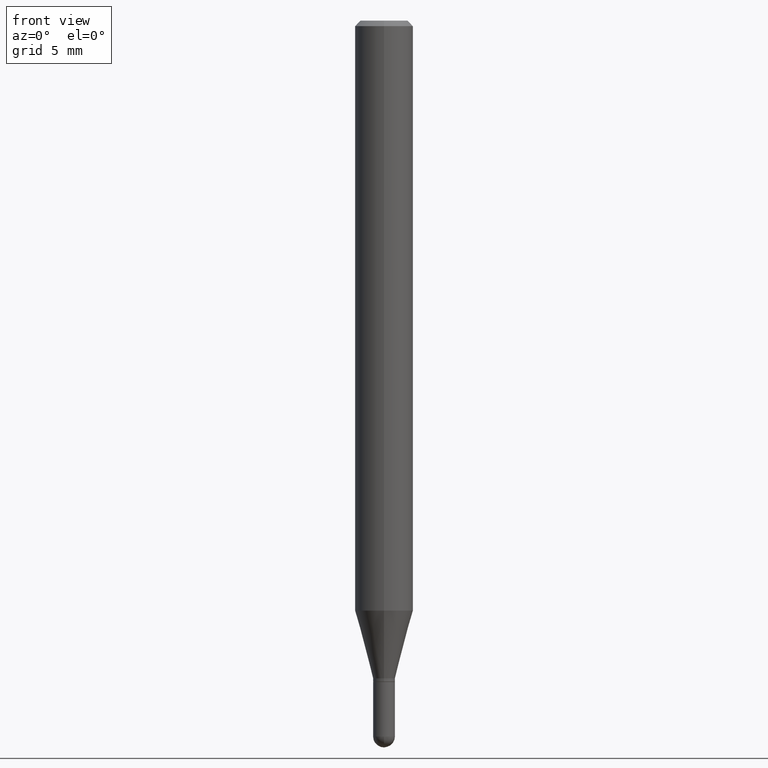
[diagram: clean part render]
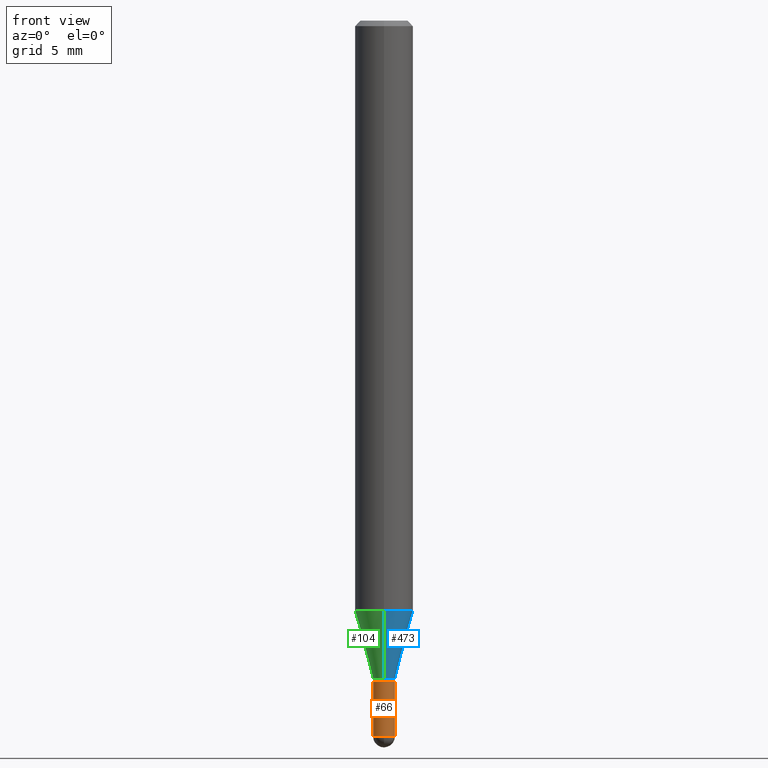
[diagram: same view with three faces highlighted in distinct colors, each labeled with its STEP entity id]
A machine part, front view with three faces highlighted in distinct colors.
Their STEP definitions:

[orange] entity #66 — the highlighted cylindrical surface (edge-blend (fillet) strip) has radius 0.7506 mm, axis along (-0, 0, 1).
#9 = EDGE_CURVE ( 'NONE', #355, #499, #20, .T. ) ;
#10 = CARTESIAN_POINT ( 'NONE',  ( 4.741641741752670047E-29, -6.769807741949916508E-15, -1.938949999999999729 ) ) ;
#20 = LINE ( 'NONE', #90, #238 ) ;
#21 = FACE_OUTER_BOUND ( 'NONE', #254, .T. ) ;
#25 = CARTESIAN_POINT ( 'NONE',  ( -0.02954999999999999988, 2.099653784171096041E-16, -1.453545319170324550E-30 ) ) ;
#27 = CYLINDRICAL_SURFACE ( 'NONE', #356, 0.02954999999999999988 ) ;
#57 = ORIENTED_EDGE ( 'NONE', *, *, #83, .F. ) ;
#58 = CARTESIAN_POINT ( 'NONE',  ( 0.000000000000000000, 0.000000000000000000, 0.000000000000000000 ) ) ;
#63 = EDGE_CURVE ( 'NONE', #312, #105, #154, .T. ) ;
#66 = ADVANCED_FACE ( 'NONE', ( #21 ), #27, .T. ) ;
#79 = CARTESIAN_POINT ( 'NONE',  ( -2.099653784170621245E-16, -0.02955000000000676530, -1.938949999999999729 ) ) ;
#83 = EDGE_CURVE ( 'NONE', #312, #396, #184, .T. ) ;
#90 = CARTESIAN_POINT ( 'NONE',  ( 0.02954999999999999988, -2.063465471256291914E-16, 1.440910237247699070E-30 ) ) ;
#94 = DIRECTION ( 'NONE',  ( -2.445468806185136597E-29, 3.491481338843145583E-15, 1.000000000000000000 ) ) ;
#96 = DIRECTION ( 'NONE',  ( 1.000000000000000000, -6.982962677686261977E-15, 0.000000000000000000 ) ) ;
#105 = VERTEX_POINT ( 'NONE', #79 ) ;
#144 = ORIENTED_EDGE ( 'NONE', *, *, #431, .F. ) ;
#154 = CIRCLE ( 'NONE', #230, 0.02954999999999999988 ) ;
#163 = EDGE_CURVE ( 'NONE', #105, #355, #497, .T. ) ;
#175 = DIRECTION ( 'NONE',  ( -2.445468806185136597E-29, 3.491481338843145583E-15, 1.000000000000000000 ) ) ;
#181 = CIRCLE ( 'NONE', #223, 0.02954999999999999988 ) ;
#182 = DIRECTION ( 'NONE',  ( -2.445468806185136877E-29, 3.491481338843145188E-15, 1.000000000000000000 ) ) ;
#184 = LINE ( 'NONE', #25, #336 ) ;
#195 = DIRECTION ( 'NONE',  ( -2.445468806185136597E-29, 3.491481338843145583E-15, 1.000000000000000000 ) ) ;
#223 = AXIS2_PLACEMENT_3D ( 'NONE', #393, #195, #239 ) ;
#230 = AXIS2_PLACEMENT_3D ( 'NONE', #383, #175, #96 ) ;
#238 = VECTOR ( 'NONE', #490, 39.37007874015748143 ) ;
#239 = DIRECTION ( 'NONE',  ( 1.000000000000000000, -6.982962677686261977E-15, 0.000000000000000000 ) ) ;
#254 = EDGE_LOOP ( 'NONE', ( #57, #430, #297, #387, #144 ) ) ;
#267 = CARTESIAN_POINT ( 'NONE',  ( -0.02954999999999999988, -6.302083753692712485E-15, -1.938949999999999729 ) ) ;
#297 = ORIENTED_EDGE ( 'NONE', *, *, #163, .T. ) ;
#312 = VERTEX_POINT ( 'NONE', #267 ) ;
#336 = VECTOR ( 'NONE', #182, 39.37007874015748143 ) ;
#342 = AXIS2_PLACEMENT_3D ( 'NONE', #10, #401, #408 ) ;
#346 = CARTESIAN_POINT ( 'NONE',  ( 0.02954999999999999988, -6.718395679235450664E-15, -1.938949999999999729 ) ) ;
#355 = VERTEX_POINT ( 'NONE', #346 ) ;
#356 = AXIS2_PLACEMENT_3D ( 'NONE', #58, #94, #380 ) ;
#380 = DIRECTION ( 'NONE',  ( 1.000000000000000000, -6.982962677686266711E-15, 4.876176775795935793E-29 ) ) ;
#383 = CARTESIAN_POINT ( 'NONE',  ( 4.741641741752670047E-29, -6.769807741949916508E-15, -1.938949999999999729 ) ) ;
#387 = ORIENTED_EDGE ( 'NONE', *, *, #9, .T. ) ;
#393 = CARTESIAN_POINT ( 'NONE',  ( 4.380568272519435501E-29, -6.254290522269726388E-15, -1.791300000000000114 ) ) ;
#396 = VERTEX_POINT ( 'NONE', #474 ) ;
#401 = DIRECTION ( 'NONE',  ( -2.445468806185136597E-29, 3.491481338843145583E-15, 1.000000000000000000 ) ) ;
#408 = DIRECTION ( 'NONE',  ( 1.000000000000000000, -6.982962677686261977E-15, 0.000000000000000000 ) ) ;
#430 = ORIENTED_EDGE ( 'NONE', *, *, #63, .T. ) ;
#431 = EDGE_CURVE ( 'NONE', #396, #499, #181, .T. ) ;
#433 = CARTESIAN_POINT ( 'NONE',  ( 0.02954999999999999988, -6.460637069395355998E-15, -1.791300000000000114 ) ) ;
#474 = CARTESIAN_POINT ( 'NONE',  ( -0.02954999999999999988, -6.302083753692712485E-15, -1.791300000000000114 ) ) ;
#490 = DIRECTION ( 'NONE',  ( -2.445468806185136877E-29, 3.491481338843145188E-15, 1.000000000000000000 ) ) ;
#497 = CIRCLE ( 'NONE', #342, 0.02954999999999999988 ) ;
#499 = VERTEX_POINT ( 'NONE', #433 ) ;

[blue] entity #473 — the highlighted conical surface has half-angle 15 deg.
#6 = DIRECTION ( 'NONE',  ( -6.982962677686265133E-15, -1.000000000000000000, 0.000000000000000000 ) ) ;
#23 = EDGE_CURVE ( 'NONE', #334, #30, #128, .T. ) ;
#29 = LINE ( 'NONE', #308, #481 ) ;
#30 = VERTEX_POINT ( 'NONE', #442 ) ;
#39 = CARTESIAN_POINT ( 'NONE',  ( 4.356639569979275081E-29, -6.220021174048346043E-15, -1.781500000000000083 ) ) ;
#40 = DIRECTION ( 'NONE',  ( -2.445489514442478225E-29, 3.491451683439991329E-15, 1.000000000000000000 ) ) ;
#71 = ORIENTED_EDGE ( 'NONE', *, *, #160, .T. ) ;
#72 = CARTESIAN_POINT ( 'NONE',  ( -2.063465471255869873E-16, -0.02955000000000641489, -1.781500000000000083 ) ) ;
#78 = DIRECTION ( 'NONE',  ( -6.982962677686265133E-15, -1.000000000000000000, 0.000000000000000000 ) ) ;
#92 = ORIENTED_EDGE ( 'NONE', *, *, #349, .F. ) ;
#128 = CIRCLE ( 'NONE', #291, 0.07875000000000000056 ) ;
#146 = AXIS2_PLACEMENT_3D ( 'NONE', #276, #40, #78 ) ;
#152 = EDGE_LOOP ( 'NONE', ( #71, #229, #177, #92 ) ) ;
#160 = EDGE_CURVE ( 'NONE', #508, #227, #426, .T. ) ;
#177 = ORIENTED_EDGE ( 'NONE', *, *, #23, .F. ) ;
#197 = DIRECTION ( 'NONE',  ( 1.839019923739602287E-15, 0.2588190451025252359, 0.9659258262890670910 ) ) ;
#209 = AXIS2_PLACEMENT_3D ( 'NONE', #39, #363, #6 ) ;
#227 = VERTEX_POINT ( 'NONE', #476 ) ;
#229 = ORIENTED_EDGE ( 'NONE', *, *, #415, .T. ) ;
#233 = DIRECTION ( 'NONE',  ( -6.982962677686264344E-15, -1.000000000000000000, 3.469013325287953293E-15 ) ) ;
#240 = CONICAL_SURFACE ( 'NONE', #146, 0.02955000000000019764, 0.2617993877991505736 ) ;
#252 = DIRECTION ( 'NONE',  ( -1.807323732225332111E-15, -0.2588190451025184635, 0.9659258262890689783 ) ) ;
#276 = CARTESIAN_POINT ( 'NONE',  ( 4.356639569979275081E-29, -6.220021174048346043E-15, -1.781500000000000083 ) ) ;
#291 = AXIS2_PLACEMENT_3D ( 'NONE', #386, #313, #233 ) ;
#308 = CARTESIAN_POINT ( 'NONE',  ( -2.063465471255869873E-16, -0.02955000000000641489, -1.781500000000000083 ) ) ;
#313 = DIRECTION ( 'NONE',  ( -2.445489514442478225E-29, 3.491451683439991329E-15, 1.000000000000000000 ) ) ;
#334 = VERTEX_POINT ( 'NONE', #372 ) ;
#349 = EDGE_CURVE ( 'NONE', #508, #334, #29, .T. ) ;
#358 = LINE ( 'NONE', #470, #453 ) ;
#363 = DIRECTION ( 'NONE',  ( -2.445489514442478225E-29, 3.491451683439991329E-15, 1.000000000000000000 ) ) ;
#372 = CARTESIAN_POINT ( 'NONE',  ( -5.499083108677545929E-16, -0.07875000000000559330, -1.597883100267612599 ) ) ;
#386 = CARTESIAN_POINT ( 'NONE',  ( 3.907606367009286482E-29, -5.578931640369670295E-15, -1.597883100267613043 ) ) ;
#415 = EDGE_CURVE ( 'NONE', #227, #30, #358, .T. ) ;
#426 = CIRCLE ( 'NONE', #209, 0.02955000000000019764 ) ;
#442 = CARTESIAN_POINT ( 'NONE',  ( 5.595524044111175545E-16, 0.07874999999999438005, -1.597883100267613266 ) ) ;
#453 = VECTOR ( 'NONE', #197, 39.37007874015748143 ) ;
#470 = CARTESIAN_POINT ( 'NONE',  ( 2.099653784171545198E-16, 0.02954999999999397692, -1.781500000000000083 ) ) ;
#473 = ADVANCED_FACE ( 'NONE', ( #479 ), #240, .T. ) ;
#476 = CARTESIAN_POINT ( 'NONE',  ( 3.847588914141361851E-16, 0.02954999999999397692, -1.781500000000000083 ) ) ;
#479 = FACE_OUTER_BOUND ( 'NONE', #152, .T. ) ;
#481 = VECTOR ( 'NONE', #252, 39.37007874015748854 ) ;
#508 = VERTEX_POINT ( 'NONE', #72 ) ;

[green] entity #104 — the highlighted conical surface has half-angle 15 deg.
#13 = CARTESIAN_POINT ( 'NONE',  ( 4.356639569979275081E-29, -6.220021174048346043E-15, -1.781500000000000083 ) ) ;
#29 = LINE ( 'NONE', #308, #481 ) ;
#30 = VERTEX_POINT ( 'NONE', #442 ) ;
#36 = ORIENTED_EDGE ( 'NONE', *, *, #415, .F. ) ;
#38 = CIRCLE ( 'NONE', #503, 0.02955000000000019764 ) ;
#67 = AXIS2_PLACEMENT_3D ( 'NONE', #242, #204, #403 ) ;
#72 = CARTESIAN_POINT ( 'NONE',  ( -2.063465471255869873E-16, -0.02955000000000641489, -1.781500000000000083 ) ) ;
#104 = ADVANCED_FACE ( 'NONE', ( #441 ), #137, .T. ) ;
#135 = EDGE_CURVE ( 'NONE', #227, #508, #38, .T. ) ;
#137 = CONICAL_SURFACE ( 'NONE', #216, 0.02955000000000019764, 0.2617993877991505736 ) ;
#145 = CIRCLE ( 'NONE', #67, 0.07875000000000000056 ) ;
#157 = EDGE_CURVE ( 'NONE', #30, #334, #145, .T. ) ;
#197 = DIRECTION ( 'NONE',  ( 1.839019923739602287E-15, 0.2588190451025252359, 0.9659258262890670910 ) ) ;
#204 = DIRECTION ( 'NONE',  ( -2.445489514442478225E-29, 3.491451683439991329E-15, 1.000000000000000000 ) ) ;
#216 = AXIS2_PLACEMENT_3D ( 'NONE', #13, #290, #487 ) ;
#225 = ORIENTED_EDGE ( 'NONE', *, *, #157, .F. ) ;
#227 = VERTEX_POINT ( 'NONE', #476 ) ;
#242 = CARTESIAN_POINT ( 'NONE',  ( 3.907606367009286482E-29, -5.578931640369670295E-15, -1.597883100267613043 ) ) ;
#252 = DIRECTION ( 'NONE',  ( -1.807323732225332111E-15, -0.2588190451025184635, 0.9659258262890689783 ) ) ;
#260 = EDGE_LOOP ( 'NONE', ( #36, #427, #347, #225 ) ) ;
#280 = DIRECTION ( 'NONE',  ( -2.445489514442478225E-29, 3.491451683439991329E-15, 1.000000000000000000 ) ) ;
#290 = DIRECTION ( 'NONE',  ( -2.445489514442478225E-29, 3.491451683439991329E-15, 1.000000000000000000 ) ) ;
#308 = CARTESIAN_POINT ( 'NONE',  ( -2.063465471255869873E-16, -0.02955000000000641489, -1.781500000000000083 ) ) ;
#334 = VERTEX_POINT ( 'NONE', #372 ) ;
#347 = ORIENTED_EDGE ( 'NONE', *, *, #349, .T. ) ;
#349 = EDGE_CURVE ( 'NONE', #508, #334, #29, .T. ) ;
#358 = LINE ( 'NONE', #470, #453 ) ;
#359 = DIRECTION ( 'NONE',  ( -6.982962677686265133E-15, -1.000000000000000000, 0.000000000000000000 ) ) ;
#372 = CARTESIAN_POINT ( 'NONE',  ( -5.499083108677545929E-16, -0.07875000000000559330, -1.597883100267612599 ) ) ;
#403 = DIRECTION ( 'NONE',  ( -6.982962677686264344E-15, -1.000000000000000000, 3.469013325287953293E-15 ) ) ;
#415 = EDGE_CURVE ( 'NONE', #227, #30, #358, .T. ) ;
#427 = ORIENTED_EDGE ( 'NONE', *, *, #135, .T. ) ;
#435 = CARTESIAN_POINT ( 'NONE',  ( 4.356639569979275081E-29, -6.220021174048346043E-15, -1.781500000000000083 ) ) ;
#441 = FACE_OUTER_BOUND ( 'NONE', #260, .T. ) ;
#442 = CARTESIAN_POINT ( 'NONE',  ( 5.595524044111175545E-16, 0.07874999999999438005, -1.597883100267613266 ) ) ;
#453 = VECTOR ( 'NONE', #197, 39.37007874015748143 ) ;
#470 = CARTESIAN_POINT ( 'NONE',  ( 2.099653784171545198E-16, 0.02954999999999397692, -1.781500000000000083 ) ) ;
#476 = CARTESIAN_POINT ( 'NONE',  ( 3.847588914141361851E-16, 0.02954999999999397692, -1.781500000000000083 ) ) ;
#481 = VECTOR ( 'NONE', #252, 39.37007874015748854 ) ;
#487 = DIRECTION ( 'NONE',  ( -6.982962677686265133E-15, -1.000000000000000000, 0.000000000000000000 ) ) ;
#503 = AXIS2_PLACEMENT_3D ( 'NONE', #435, #280, #359 ) ;
#508 = VERTEX_POINT ( 'NONE', #72 ) ;